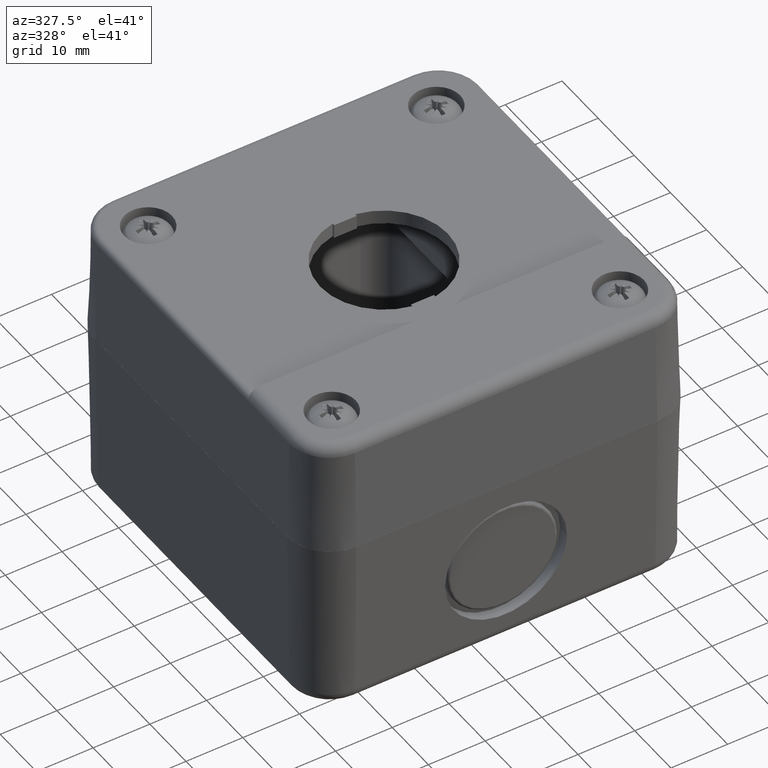
[diagram: clean part render]
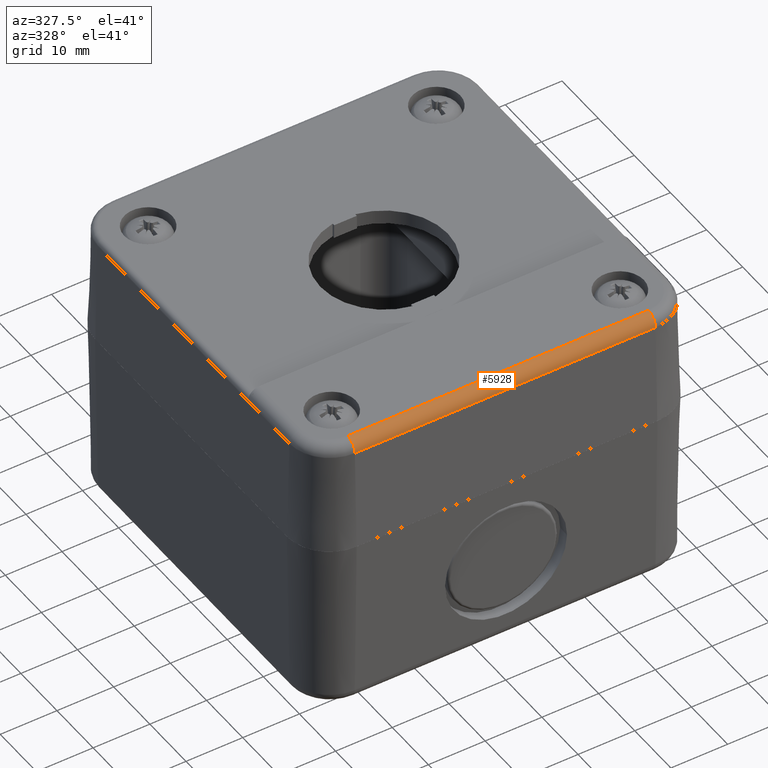
[diagram: same view with one face highlighted and labeled with its STEP entity id]
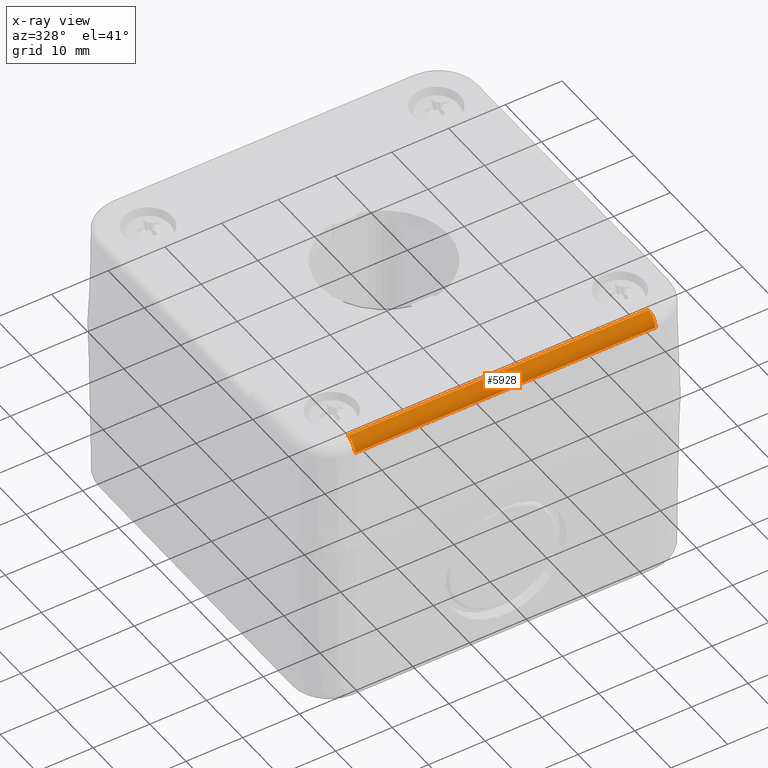
[diagram: x-ray of the same camera — body ghosted, the highlighted face saturated]
A machine part, auxiliary view. The second image highlights one B-rep face of the part: STEP entity #5928.
The next image is the same camera in x-ray: the body ghosted, the highlighted face saturated — about 0% of this face is hidden behind the body in this view.
In plain terms, the highlighted cylindrical surface (edge-blend (fillet) strip) has radius 2 mm, axis along (1, -0, -0).
Its self-contained STEP definition (entity closure, byte-faithful):
#5868=CARTESIAN_POINT('',(25.566394415944860,29.336786567101065,0.0));
#5869=VERTEX_POINT('',#5868);
#5870=CARTESIAN_POINT('',(25.566394415944856,31.336101217052182,1.947646103384255));
#5871=VERTEX_POINT('',#5870);
#5872=CARTESIAN_POINT('',(25.566394415944860,29.336786567101065,2.000000000000002));
#5873=DIRECTION('',(1.0,0.0,0.0));
#5874=DIRECTION('',(0.0,0.0,-1.0));
#5875=AXIS2_PLACEMENT_3D('',#5872,#5873,#5874);
#5876=CIRCLE('',#5875,2.000000000000002);
#5877=EDGE_CURVE('',#5869,#5871,#5876,.T.);
#5897=CARTESIAN_POINT('',(-14.183605584055147,29.336786567101065,2.0));
#5898=DIRECTION('',(1.0,8.379042E-017,0.0));
#5899=DIRECTION('',(0.0,0.697790459841681,-0.716301943424653));
#5900=AXIS2_PLACEMENT_3D('',#5897,#5898,#5899);
#5901=CYLINDRICAL_SURFACE('',#5900,2.000000000000000);
#5902=CARTESIAN_POINT('',(-27.433605584055144,29.336786567101065,0.0));
#5903=VERTEX_POINT('',#5902);
#5904=CARTESIAN_POINT('',(-27.433605584055144,31.336101217052178,1.947646103384254));
#5905=VERTEX_POINT('',#5904);
#5906=CARTESIAN_POINT('',(-27.433605584055144,29.336786567101065,2.0));
#5907=DIRECTION('',(1.0,0.0,0.0));
#5908=DIRECTION('',(0.0,0.0,-1.0));
#5909=AXIS2_PLACEMENT_3D('',#5906,#5907,#5908);
#5910=CIRCLE('',#5909,2.0);
#5911=EDGE_CURVE('',#5903,#5905,#5910,.T.);
#5912=ORIENTED_EDGE('',*,*,#5911,.T.);
#5913=CARTESIAN_POINT('',(-27.433605584055144,31.336101217052178,1.947646103384254));
#5914=DIRECTION('',(1.0,0.0,0.0));
#5915=VECTOR('',#5914,53.0);
#5916=LINE('',#5913,#5915);
#5917=EDGE_CURVE('',#5905,#5871,#5916,.T.);
#5918=ORIENTED_EDGE('',*,*,#5917,.T.);
#5919=ORIENTED_EDGE('',*,*,#5877,.F.);
#5920=CARTESIAN_POINT('',(25.566394415944860,29.336786567101065,0.0));
#5921=DIRECTION('',(-1.0,0.0,0.0));
#5922=VECTOR('',#5921,53.0);
#5923=LINE('',#5920,#5922);
#5924=EDGE_CURVE('',#5869,#5903,#5923,.T.);
#5925=ORIENTED_EDGE('',*,*,#5924,.T.);
#5926=EDGE_LOOP('',(#5912,#5918,#5919,#5925));
#5927=FACE_OUTER_BOUND('',#5926,.T.);
#5928=ADVANCED_FACE('',(#5927),#5901,.T.);